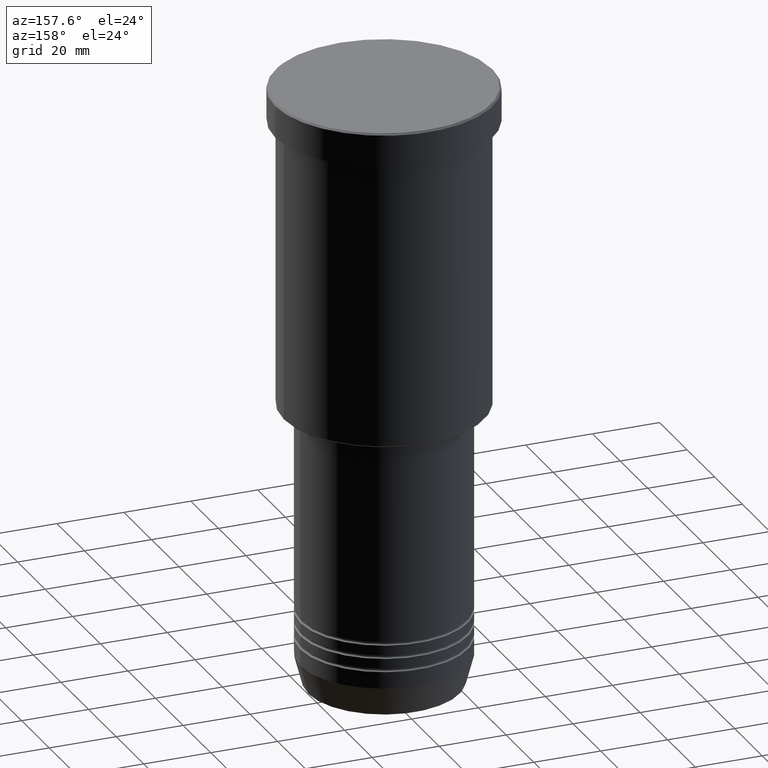
[diagram: clean part render]
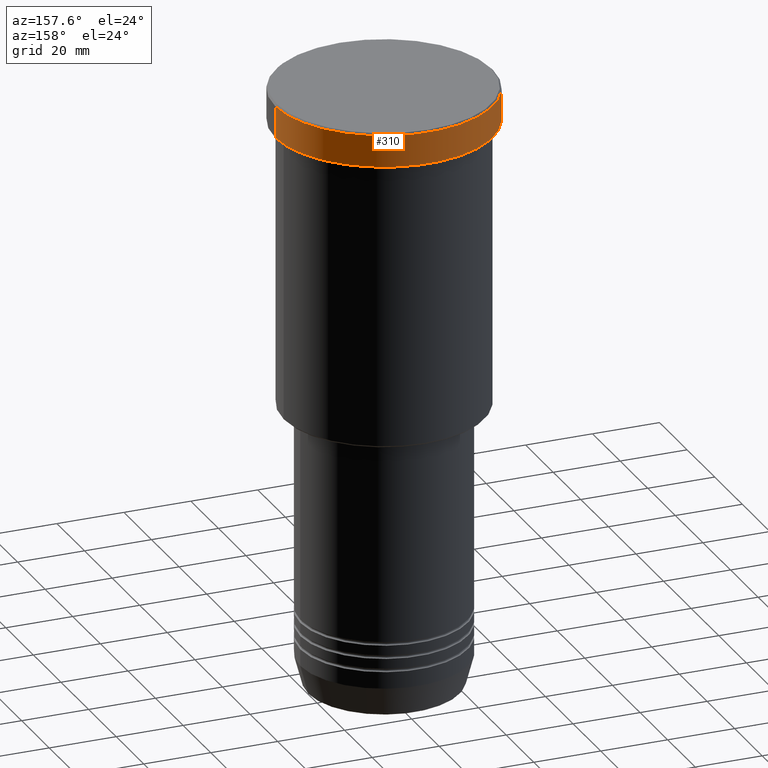
[diagram: same view with one face highlighted and labeled with its STEP entity id]
A machine part, auxiliary view. The second image highlights one B-rep face of the part: STEP entity #310.
In plain terms, the highlighted cylindrical surface (partial cylindrical patch) has radius 32.5 mm, axis along (-0, -0, 1).
Its self-contained STEP definition (entity closure, byte-faithful):
#20 = EDGE_CURVE ( 'NONE', #898, #1173, #678, .T. ) ;
#42 = DIRECTION ( 'NONE',  ( 1.000000000000000000, 0.000000000000000000, 0.000000000000000000 ) ) ;
#62 = DIRECTION ( 'NONE',  ( 1.000000000000000000, 0.000000000000000000, 0.000000000000000000 ) ) ;
#98 = VERTEX_POINT ( 'NONE', #505 ) ;
#155 = DIRECTION ( 'NONE',  ( -0.000000000000000000, -0.000000000000000000, 1.000000000000000000 ) ) ;
#205 = VECTOR ( 'NONE', #614, 1000.000000000000000 ) ;
#211 = DIRECTION ( 'NONE',  ( -0.000000000000000000, -0.000000000000000000, 1.000000000000000000 ) ) ;
#219 = DIRECTION ( 'NONE',  ( 0.000000000000000000, 0.000000000000000000, -1.000000000000000000 ) ) ;
#304 = CARTESIAN_POINT ( 'NONE',  ( 0.000000000000000000, 0.000000000000000000, -0.5000000000000004441 ) ) ;
#306 = EDGE_CURVE ( 'NONE', #892, #898, #1063, .T. ) ;
#310 = ADVANCED_FACE ( 'NONE', ( #970 ), #966, .T. ) ;
#328 = EDGE_CURVE ( 'NONE', #98, #892, #378, .T. ) ;
#342 = CARTESIAN_POINT ( 'NONE',  ( -32.50000000000000000, 3.980102097228898626E-15, 0.000000000000000000 ) ) ;
#357 = AXIS2_PLACEMENT_3D ( 'NONE', #1159, #155, #62 ) ;
#373 = LINE ( 'NONE', #729, #702 ) ;
#375 = DIRECTION ( 'NONE',  ( 1.000000000000000000, 0.000000000000000000, 0.000000000000000000 ) ) ;
#378 = CIRCLE ( 'NONE', #1037, 32.50000000000000000 ) ;
#436 = CARTESIAN_POINT ( 'NONE',  ( 0.000000000000000000, 0.000000000000000000, -9.999999999999992895 ) ) ;
#472 = CARTESIAN_POINT ( 'NONE',  ( -32.50000000000000000, 3.980102097228898626E-15, -0.5000000000000004441 ) ) ;
#505 = CARTESIAN_POINT ( 'NONE',  ( 32.50000000000000000, 0.000000000000000000, -9.999999999999992895 ) ) ;
#558 = CARTESIAN_POINT ( 'NONE',  ( -32.50000000000000000, 3.980102097228898626E-15, -9.999999999999992895 ) ) ;
#568 = ORIENTED_EDGE ( 'NONE', *, *, #896, .F. ) ;
#569 = AXIS2_PLACEMENT_3D ( 'NONE', #304, #219, #42 ) ;
#614 = DIRECTION ( 'NONE',  ( -0.000000000000000000, -0.000000000000000000, 1.000000000000000000 ) ) ;
#678 = CIRCLE ( 'NONE', #569, 32.50000000000000000 ) ;
#702 = VECTOR ( 'NONE', #211, 1000.000000000000000 ) ;
#729 = CARTESIAN_POINT ( 'NONE',  ( 32.50000000000000000, 0.000000000000000000, 0.000000000000000000 ) ) ;
#800 = DIRECTION ( 'NONE',  ( -0.000000000000000000, -0.000000000000000000, 1.000000000000000000 ) ) ;
#822 = EDGE_LOOP ( 'NONE', ( #1068, #980, #988, #568 ) ) ;
#892 = VERTEX_POINT ( 'NONE', #558 ) ;
#896 = EDGE_CURVE ( 'NONE', #98, #1173, #373, .T. ) ;
#898 = VERTEX_POINT ( 'NONE', #472 ) ;
#920 = CARTESIAN_POINT ( 'NONE',  ( 32.50000000000000000, 0.000000000000000000, -0.5000000000000004441 ) ) ;
#966 = CYLINDRICAL_SURFACE ( 'NONE', #357, 32.50000000000000000 ) ;
#970 = FACE_OUTER_BOUND ( 'NONE', #822, .T. ) ;
#980 = ORIENTED_EDGE ( 'NONE', *, *, #306, .T. ) ;
#988 = ORIENTED_EDGE ( 'NONE', *, *, #20, .T. ) ;
#1037 = AXIS2_PLACEMENT_3D ( 'NONE', #436, #800, #375 ) ;
#1063 = LINE ( 'NONE', #342, #205 ) ;
#1068 = ORIENTED_EDGE ( 'NONE', *, *, #328, .T. ) ;
#1159 = CARTESIAN_POINT ( 'NONE',  ( 0.000000000000000000, 0.000000000000000000, 0.000000000000000000 ) ) ;
#1173 = VERTEX_POINT ( 'NONE', #920 ) ;